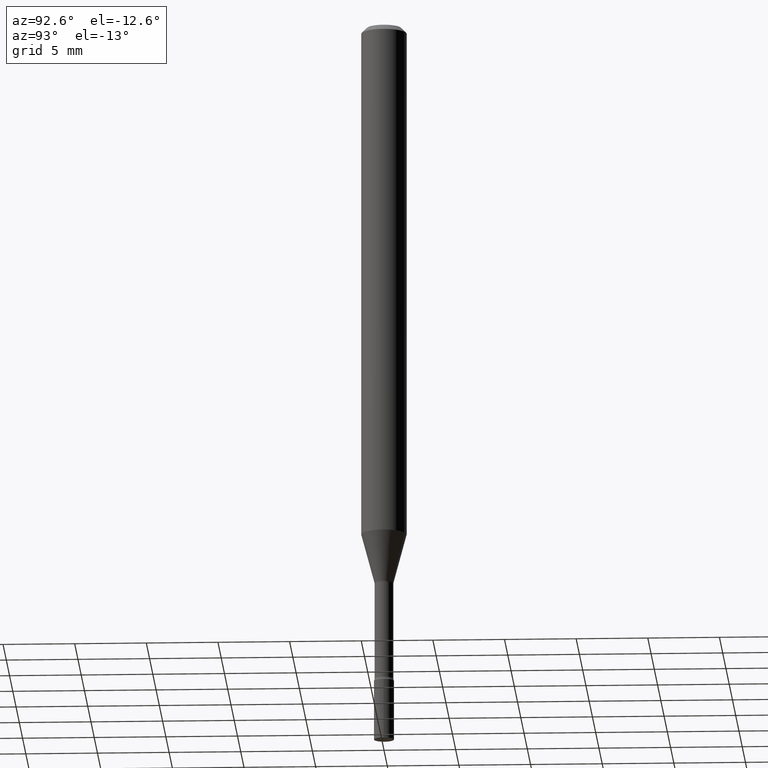
[diagram: clean part render]
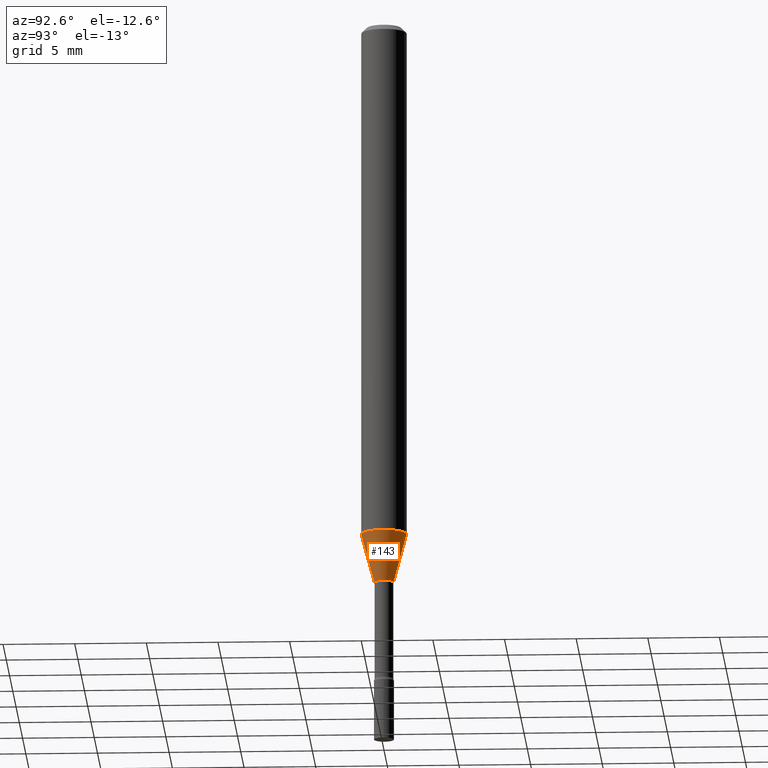
[diagram: same view with one face highlighted and labeled with its STEP entity id]
A machine part, auxiliary view. The second image highlights one B-rep face of the part: STEP entity #143.
In plain terms, the highlighted conical surface has half-angle 15 deg.
Its self-contained STEP definition (entity closure, byte-faithful):
#25 = VERTEX_POINT ( 'NONE', #444 ) ;
#28 = DIRECTION ( 'NONE',  ( -1.807323732225326589E-15, -0.2588190451025176864, 0.9659258262890690894 ) ) ;
#43 = AXIS2_PLACEMENT_3D ( 'NONE', #393, #349, #517 ) ;
#47 = CARTESIAN_POINT ( 'NONE',  ( 3.156980902676104924E-16, 0.02636111260565853626, -1.558092501787273099 ) ) ;
#49 = CONICAL_SURFACE ( 'NONE', #501, 0.02636111260566397288, 0.2617993877991497409 ) ;
#97 = ORIENTED_EDGE ( 'NONE', *, *, #208, .F. ) ;
#102 = VERTEX_POINT ( 'NONE', #234 ) ;
#107 = EDGE_CURVE ( 'NONE', #25, #102, #145, .T. ) ;
#115 = CARTESIAN_POINT ( 'NONE',  ( -1.840786654675983805E-16, -0.02636111260566941297, -1.558092501787273099 ) ) ;
#143 = ADVANCED_FACE ( 'NONE', ( #462 ), #49, .T. ) ;
#145 = CIRCLE ( 'NONE', #412, 0.06250000000000000000 ) ;
#158 = EDGE_CURVE ( 'NONE', #392, #373, #259, .T. ) ;
#174 = ORIENTED_EDGE ( 'NONE', *, *, #107, .F. ) ;
#192 = CARTESIAN_POINT ( 'NONE',  ( 3.480551036687311738E-29, -4.968989587084583465E-15, -1.423220337902600718 ) ) ;
#208 = EDGE_CURVE ( 'NONE', #392, #25, #388, .T. ) ;
#234 = CARTESIAN_POINT ( 'NONE',  ( 4.440892098500972274E-16, 0.06249999999999501094, -1.423220337902601162 ) ) ;
#251 = VECTOR ( 'NONE', #28, 39.37007874015748854 ) ;
#254 = LINE ( 'NONE', #296, #502 ) ;
#259 = CIRCLE ( 'NONE', #43, 0.02636111260566397288 ) ;
#277 = CARTESIAN_POINT ( 'NONE',  ( -1.840786654675983805E-16, -0.02636111260566941297, -1.558092501787273099 ) ) ;
#295 = DIRECTION ( 'NONE',  ( -2.445546163158824797E-29, 3.491370559253938417E-15, 1.000000000000000000 ) ) ;
#296 = CARTESIAN_POINT ( 'NONE',  ( 1.873069706851234863E-16, 0.02636111260565853626, -1.558092501787273099 ) ) ;
#329 = DIRECTION ( 'NONE',  ( 1.839019923739596765E-15, 0.2588190451025244587, 0.9659258262890673130 ) ) ;
#349 = DIRECTION ( 'NONE',  ( -2.445546163158824797E-29, 3.491370559253938417E-15, 1.000000000000000000 ) ) ;
#350 = DIRECTION ( 'NONE',  ( -6.982962677686265922E-15, -1.000000000000000000, 4.370956789862821150E-15 ) ) ;
#365 = ORIENTED_EDGE ( 'NONE', *, *, #495, .T. ) ;
#367 = ORIENTED_EDGE ( 'NONE', *, *, #158, .T. ) ;
#373 = VERTEX_POINT ( 'NONE', #47 ) ;
#383 = CARTESIAN_POINT ( 'NONE',  ( 3.810387139592400580E-29, -5.439878289334400847E-15, -1.558092501787273099 ) ) ;
#388 = LINE ( 'NONE', #115, #251 ) ;
#389 = DIRECTION ( 'NONE',  ( -6.982962677686265922E-15, -1.000000000000000000, 0.000000000000000000 ) ) ;
#392 = VERTEX_POINT ( 'NONE', #277 ) ;
#393 = CARTESIAN_POINT ( 'NONE',  ( 3.810387139592400580E-29, -5.439878289334400847E-15, -1.558092501787273099 ) ) ;
#412 = AXIS2_PLACEMENT_3D ( 'NONE', #192, #481, #350 ) ;
#444 = CARTESIAN_POINT ( 'NONE',  ( -4.364351673553569595E-16, -0.06250000000000498213, -1.423220337902600496 ) ) ;
#447 = EDGE_LOOP ( 'NONE', ( #367, #365, #174, #97 ) ) ;
#462 = FACE_OUTER_BOUND ( 'NONE', #447, .T. ) ;
#481 = DIRECTION ( 'NONE',  ( -2.445546163158824797E-29, 3.491370559253938417E-15, 1.000000000000000000 ) ) ;
#495 = EDGE_CURVE ( 'NONE', #373, #102, #254, .T. ) ;
#501 = AXIS2_PLACEMENT_3D ( 'NONE', #383, #295, #389 ) ;
#502 = VECTOR ( 'NONE', #329, 39.37007874015748143 ) ;
#517 = DIRECTION ( 'NONE',  ( -6.982962677686265922E-15, -1.000000000000000000, 0.000000000000000000 ) ) ;